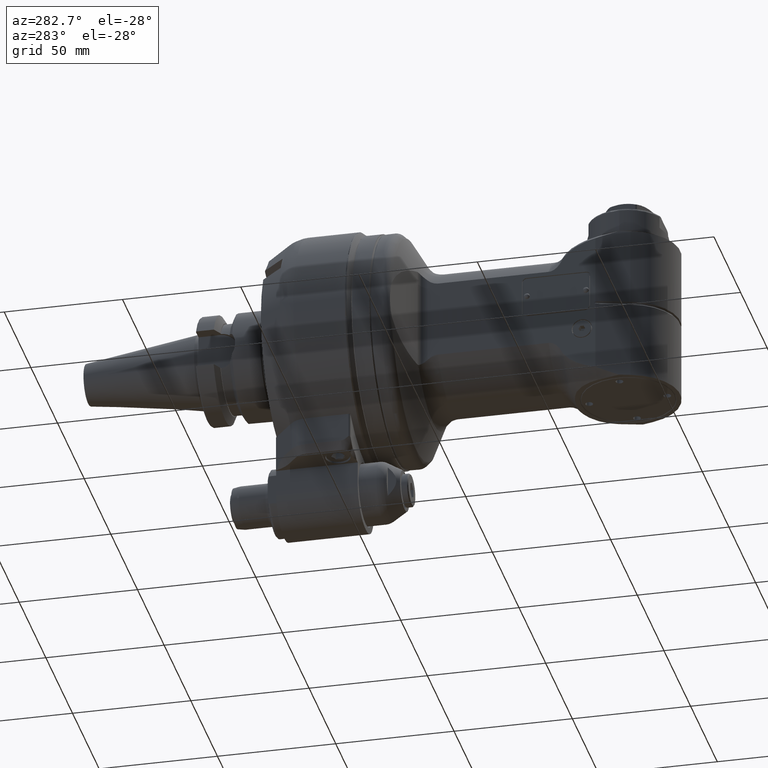
[diagram: clean part render]
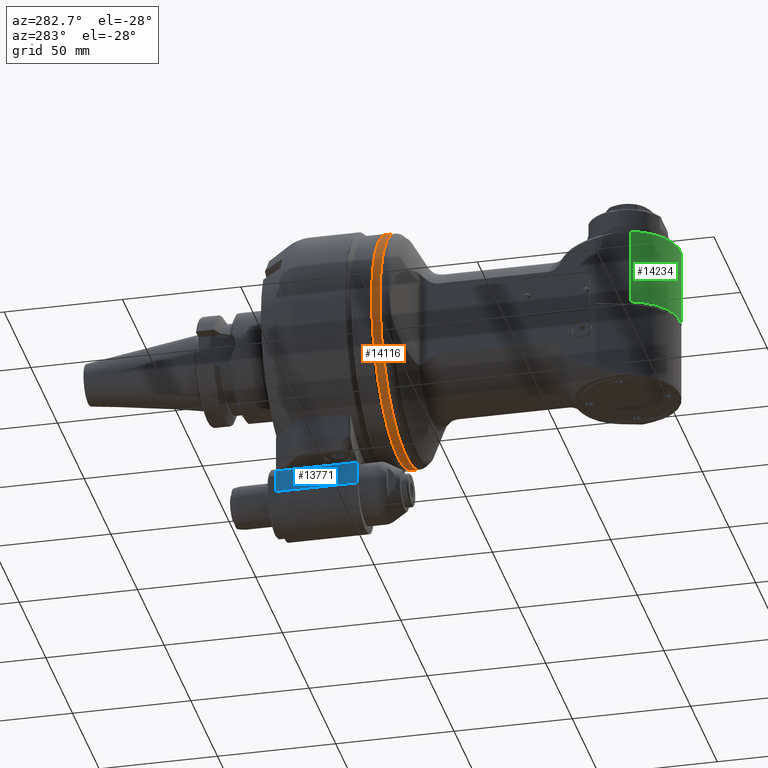
[diagram: same view with three faces highlighted in distinct colors, each labeled with its STEP entity id]
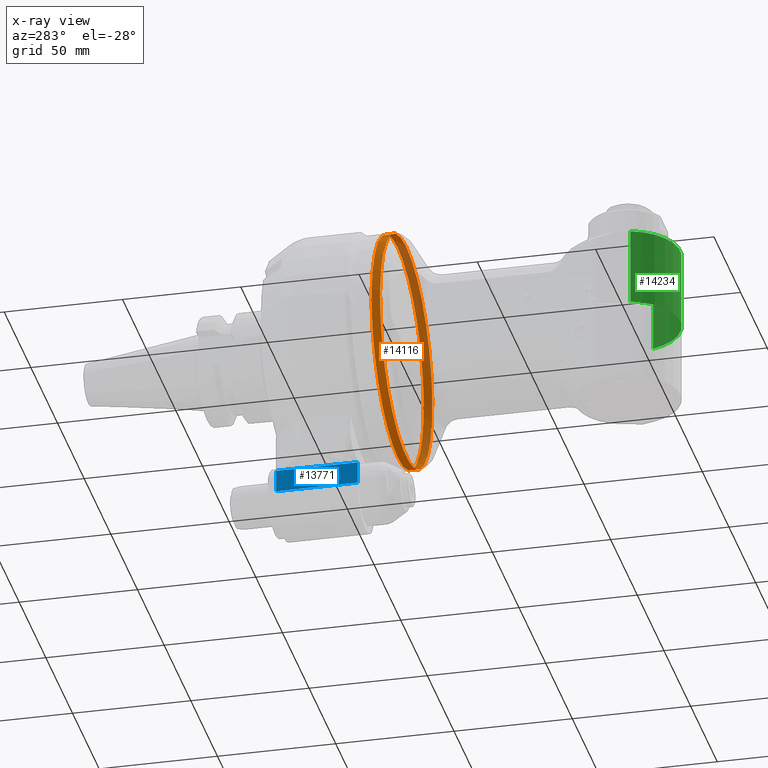
[diagram: x-ray of the same camera — body ghosted, the three highlighted faces saturated]
A machine part, auxiliary view with three faces highlighted in distinct colors.
The next image is the same camera in x-ray (body ghosted, the three faces saturated) — at least one of them is partly hidden behind the body in this view.
Their STEP definitions:

[orange] entity #14116 — the highlighted cylindrical surface (bore or boss wall) has radius 49 mm, axis along (0, 1, 0).
#1184=CYLINDRICAL_SURFACE('',#15732,49.);
#1898=FACE_OUTER_BOUND('',#2893,.T.);
#2893=EDGE_LOOP('',(#12258,#12259,#12260,#12261,#12262));
#3822=CIRCLE('',#15730,49.);
#3824=CIRCLE('',#15733,49.);
#3825=CIRCLE('',#15734,49.);
#4683=LINE('',#54638,#5557);
#5557=VECTOR('',#19462,49.);
#6827=VERTEX_POINT('',#54630);
#6828=VERTEX_POINT('',#54634);
#6829=VERTEX_POINT('',#54635);
#8709=EDGE_CURVE('',#6827,#6827,#3822,.T.);
#8711=EDGE_CURVE('',#6828,#6829,#3824,.T.);
#8712=EDGE_CURVE('',#6829,#6828,#3825,.T.);
#8713=EDGE_CURVE('',#6829,#6827,#4683,.T.);
#12258=ORIENTED_EDGE('',*,*,#8711,.F.);
#12259=ORIENTED_EDGE('',*,*,#8712,.F.);
#12260=ORIENTED_EDGE('',*,*,#8713,.T.);
#12261=ORIENTED_EDGE('',*,*,#8709,.F.);
#12262=ORIENTED_EDGE('',*,*,#8713,.F.);
#14116=ADVANCED_FACE('',(#1898),#1184,.T.);
#15730=AXIS2_PLACEMENT_3D('',#54631,#19452,#19453);
#15732=AXIS2_PLACEMENT_3D('',#54633,#19456,#19457);
#15733=AXIS2_PLACEMENT_3D('',#54636,#19458,#19459);
#15734=AXIS2_PLACEMENT_3D('',#54637,#19460,#19461);
#19452=DIRECTION('center_axis',(1.,0.,0.));
#19453=DIRECTION('ref_axis',(0.,-1.,0.));
#19456=DIRECTION('center_axis',(-1.,0.,0.));
#19457=DIRECTION('ref_axis',(0.,1.,0.));
#19458=DIRECTION('center_axis',(-1.,0.,0.));
#19459=DIRECTION('ref_axis',(0.,1.,0.));
#19460=DIRECTION('center_axis',(-1.,0.,0.));
#19461=DIRECTION('ref_axis',(0.,1.,0.));
#19462=DIRECTION('',(1.,0.,0.));
#54630=CARTESIAN_POINT('',(16.11324869871,-49.,6.00076931582203E-15));
#54631=CARTESIAN_POINT('Origin',(16.11324869871,0.,0.));
#54633=CARTESIAN_POINT('Origin',(58.7038755,0.,0.));
#54634=CARTESIAN_POINT('',(12.5,49.,0.));
#54635=CARTESIAN_POINT('',(12.5,-49.,6.00076931582203E-15));
#54636=CARTESIAN_POINT('Origin',(12.5,0.,0.));
#54637=CARTESIAN_POINT('Origin',(12.5,0.,0.));
#54638=CARTESIAN_POINT('',(58.7038755,-49.,6.00076931582203E-15));

[blue] entity #13771 — the highlighted planar face has unit normal (1, -0, -0).
#796=PLANE('',#15029);
#1553=FACE_OUTER_BOUND('',#2477,.T.);
#2477=EDGE_LOOP('',(#10696,#10697,#10698,#10699));
#4346=LINE('',#22666,#5220);
#4357=LINE('',#22712,#5231);
#4367=LINE('',#22758,#5241);
#4368=LINE('',#22759,#5242);
#5220=VECTOR('',#17675,9.5);
#5231=VECTOR('',#17704,34.5);
#5241=VECTOR('',#17736,9.5);
#5242=VECTOR('',#17737,34.5);
#6268=VERTEX_POINT('',#22663);
#6269=VERTEX_POINT('',#22665);
#6286=VERTEX_POINT('',#22710);
#6292=VERTEX_POINT('',#22757);
#7870=EDGE_CURVE('',#6269,#6268,#4346,.T.);
#7891=EDGE_CURVE('',#6268,#6286,#4357,.T.);
#7905=EDGE_CURVE('',#6292,#6286,#4367,.T.);
#7906=EDGE_CURVE('',#6269,#6292,#4368,.T.);
#10696=ORIENTED_EDGE('',*,*,#7905,.F.);
#10697=ORIENTED_EDGE('',*,*,#7906,.F.);
#10698=ORIENTED_EDGE('',*,*,#7870,.T.);
#10699=ORIENTED_EDGE('',*,*,#7891,.T.);
#13771=ADVANCED_FACE('',(#1553),#796,.F.);
#15029=AXIS2_PLACEMENT_3D('',#22756,#17734,#17735);
#17675=DIRECTION('',(0.,0.,1.));
#17704=DIRECTION('',(0.,1.,0.));
#17734=DIRECTION('center_axis',(1.,0.,0.));
#17735=DIRECTION('ref_axis',(0.,1.,0.));
#17736=DIRECTION('',(0.,0.,1.));
#17737=DIRECTION('',(0.,1.,0.));
#22663=CARTESIAN_POINT('',(-15.,5.,-57.5));
#22665=CARTESIAN_POINT('',(-15.,5.,-67.));
#22666=CARTESIAN_POINT('',(-15.,5.,-67.));
#22710=CARTESIAN_POINT('',(-15.,39.5,-57.5));
#22712=CARTESIAN_POINT('',(-15.,5.,-57.5));
#22756=CARTESIAN_POINT('Origin',(-15.,45.5,-80.75));
#22757=CARTESIAN_POINT('',(-15.,39.5,-67.));
#22758=CARTESIAN_POINT('',(-15.,39.5,-67.));
#22759=CARTESIAN_POINT('',(-15.,5.,-67.));

[green] entity #14234 — the highlighted cylindrical surface (partial cylindrical patch) has radius 22 mm, axis along (-0, 0, -1).
#1217=CYLINDRICAL_SURFACE('',#15970,22.);
#2016=FACE_OUTER_BOUND('',#3045,.T.);
#3045=EDGE_LOOP('',(#12801,#12802,#12803,#12804));
#3810=CIRCLE('',#15705,22.);
#3941=CIRCLE('',#15968,22.);
#4793=LINE('',#55291,#5667);
#4802=LINE('',#55325,#5676);
#5667=VECTOR('',#20016,32.83431457505);
#5676=VECTOR('',#20053,32.83431457505);
#6784=VERTEX_POINT('',#54383);
#6785=VERTEX_POINT('',#54385);
#7006=VERTEX_POINT('',#55289);
#7013=VERTEX_POINT('',#55319);
#8657=EDGE_CURVE('',#6785,#6784,#3810,.T.);
#8967=EDGE_CURVE('',#6784,#7006,#4793,.T.);
#8980=EDGE_CURVE('',#7006,#7013,#3941,.T.);
#8983=EDGE_CURVE('',#7013,#6785,#4802,.T.);
#12801=ORIENTED_EDGE('',*,*,#8980,.T.);
#12802=ORIENTED_EDGE('',*,*,#8983,.T.);
#12803=ORIENTED_EDGE('',*,*,#8657,.T.);
#12804=ORIENTED_EDGE('',*,*,#8967,.T.);
#14234=ADVANCED_FACE('',(#2016),#1217,.T.);
#15705=AXIS2_PLACEMENT_3D('',#54386,#19390,#19391);
#15968=AXIS2_PLACEMENT_3D('',#55320,#20046,#20047);
#15970=AXIS2_PLACEMENT_3D('',#55324,#20051,#20052);
#19390=DIRECTION('center_axis',(0.,1.,0.));
#19391=DIRECTION('ref_axis',(0.258819045102493,0.,0.965925826289076));
#20016=DIRECTION('',(0.,1.,0.));
#20046=DIRECTION('center_axis',(0.,-1.,0.));
#20047=DIRECTION('ref_axis',(0.258819045102493,0.,-0.965925826289076));
#20051=DIRECTION('center_axis',(0.,1.,0.));
#20052=DIRECTION('ref_axis',(1.,0.,7.22789203751574E-15));
#20053=DIRECTION('',(-1.038731941199E-14,-1.,0.));
#54383=CARTESIAN_POINT('',(115.6940189923,-33.5,-21.25036817836));
#54385=CARTESIAN_POINT('',(115.6940189923,-33.5,21.25036817836));
#54386=CARTESIAN_POINT('Origin',(110.,-33.5,0.));
#55289=CARTESIAN_POINT('',(115.6940189923,-0.6656854249492,-21.25036817836));
#55291=CARTESIAN_POINT('',(115.6940189923,-33.5,-21.25036817836));
#55319=CARTESIAN_POINT('',(115.6940189923,-0.6656854249492,21.25036817836));
#55320=CARTESIAN_POINT('Origin',(110.,-0.6656854249492,0.));
#55324=CARTESIAN_POINT('Origin',(110.,-71.53832403312,0.));
#55325=CARTESIAN_POINT('',(115.6940189923,-0.6656854249492,21.25036817836));